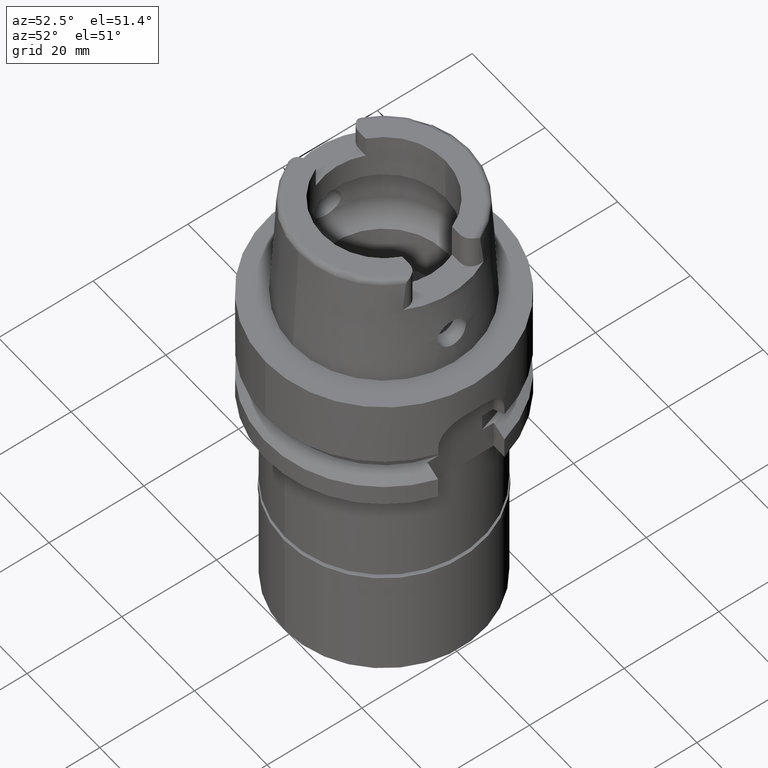
[diagram: clean part render]
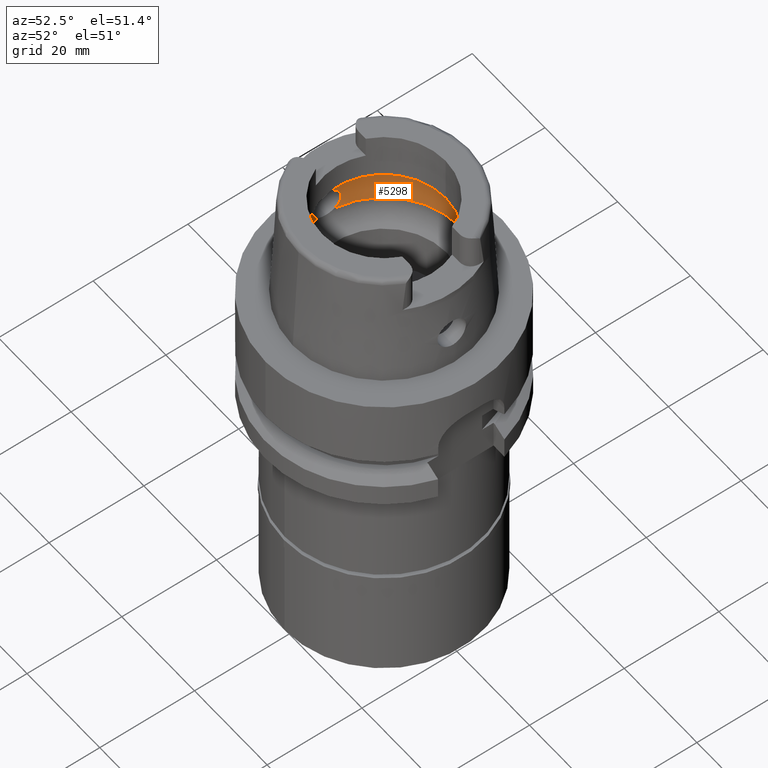
[diagram: same view with one face highlighted and labeled with its STEP entity id]
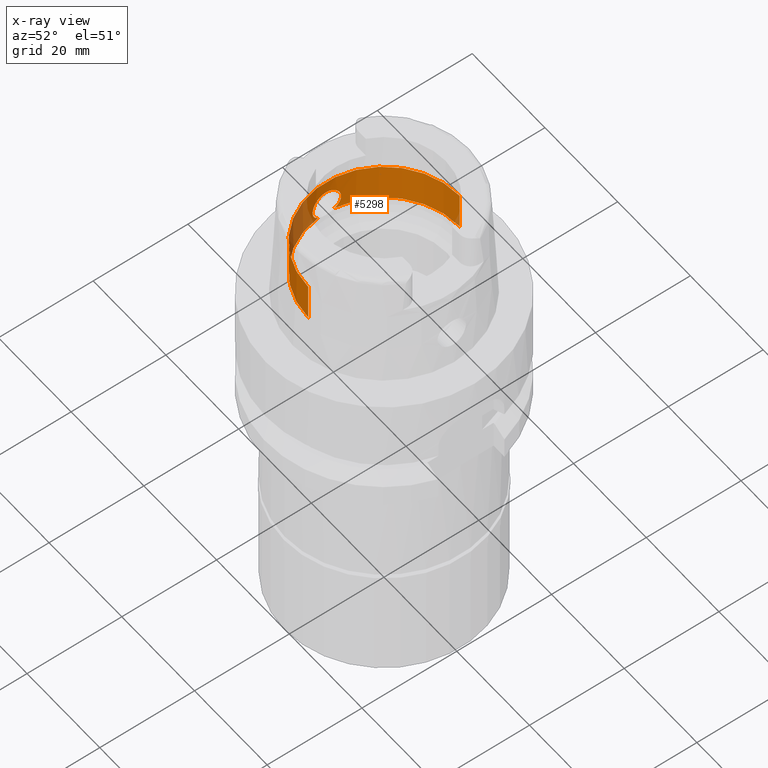
[diagram: x-ray of the same camera — body ghosted, the highlighted face saturated]
A machine part, auxiliary view. The second image highlights one B-rep face of the part: STEP entity #5298.
The next image is the same camera in x-ray: the body ghosted, the highlighted face saturated — about 12% of this face is hidden behind the body in this view.
In plain terms, the highlighted cylindrical surface (partial cylindrical patch) has radius 16 mm, axis along (0, 0, 1).
Its self-contained STEP definition (entity closure, byte-faithful):
#3 = EDGE_CURVE ( 'NONE', #4327, #130, #1689, .T. ) ;
#11 = LINE ( 'NONE', #2820, #3813 ) ;
#74 = CARTESIAN_POINT ( 'NONE',  ( -15.85360490942496625, 2.159781060076579884, 9.582798979518717175 ) ) ;
#102 = CARTESIAN_POINT ( 'NONE',  ( -15.83011907268372376, 2.325804281314371114, 5.604693772686527353 ) ) ;
#130 = VERTEX_POINT ( 'NONE', #3704 ) ;
#136 = CARTESIAN_POINT ( 'NONE',  ( -15.72771942967520609, 2.939531676687658024, 8.104588846059888496 ) ) ;
#139 = CARTESIAN_POINT ( 'NONE',  ( -15.82027127410935385, -2.391580718813938855, 9.311245973682712673 ) ) ;
#159 = CARTESIAN_POINT ( 'NONE',  ( -15.83998008072024000, 2.257711120083047973, 9.476085156541161680 ) ) ;
#164 = CARTESIAN_POINT ( 'NONE',  ( -15.76019352119648076, -2.760527905334588361, 8.676795684430540945 ) ) ;
#186 = CARTESIAN_POINT ( 'NONE',  ( -15.72575684360607084, 2.951481853126600718, 6.872757474522299681 ) ) ;
#189 = CARTESIAN_POINT ( 'NONE',  ( -15.82480137623916505, -2.361587141660386635, 9.350401961597023970 ) ) ;
#223 = CARTESIAN_POINT ( 'NONE',  ( -15.81398433061579745, -2.432676461633322518, 9.255589141645923945 ) ) ;
#243 = CARTESIAN_POINT ( 'NONE',  ( -15.96992059342635173, 0.9799261758645131382, 10.33553757479539215 ) ) ;
#247 = CARTESIAN_POINT ( 'NONE',  ( -15.85514333196193171, -2.148218134158464743, 5.405773310586390323 ) ) ;
#249 = CARTESIAN_POINT ( 'NONE',  ( 0.0000000000000000000, -16.00000000000000000, 5.060987926546999915 ) ) ;
#291 = VECTOR ( 'NONE', #716, 1000.000000000000000 ) ;
#319 = CARTESIAN_POINT ( 'NONE',  ( -15.95025208625579616, 1.260531072850129108, 10.22346728246241021 ) ) ;
#381 = ORIENTED_EDGE ( 'NONE', *, *, #1491, .T. ) ;
#461 = ORIENTED_EDGE ( 'NONE', *, *, #3496, .F. ) ;
#489 = CARTESIAN_POINT ( 'NONE',  ( -15.71828237872020395, 2.989665135100695981, 7.794132645668703674 ) ) ;
#507 = CARTESIAN_POINT ( 'NONE',  ( 0.0000000000000000000, 0.0000000000000000000, 5.060987926546999915 ) ) ;
#514 = CARTESIAN_POINT ( 'NONE',  ( -15.75453089395557527, 2.792349934053283356, 6.402682268012145350 ) ) ;
#533 = VERTEX_POINT ( 'NONE', #4142 ) ;
#540 = CARTESIAN_POINT ( 'NONE',  ( -15.76728727648495010, 2.720145057969051372, 6.232311309027123158 ) ) ;
#543 = AXIS2_PLACEMENT_3D ( 'NONE', #2225, #1421, #5190 ) ;
#544 = CARTESIAN_POINT ( 'NONE',  ( -15.76557056196502593, -2.729906874286962548, 8.746534421694992290 ) ) ;
#570 = CARTESIAN_POINT ( 'NONE',  ( -15.77782794236486730, 2.658185335532027516, 8.892943387562738167 ) ) ;
#573 = CARTESIAN_POINT ( 'NONE',  ( -15.97364696837025022, -0.9172688642126561875, 10.35634220639586012 ) ) ;
#594 = CARTESIAN_POINT ( 'NONE',  ( -15.84873746113816750, 2.195239179731879986, 9.545262083797341646 ) ) ;
#598 = CARTESIAN_POINT ( 'NONE',  ( -15.97428371962349125, -0.9061556334865509266, 10.35989226568158017 ) ) ;
#607 = B_SPLINE_CURVE_WITH_KNOTS ( 'NONE', 3,
 ( #1727, #5110, #1317, #4704, #4295, #3506, #1860, #3107, #2227, #3560, #4342, #102, #4758, #4783, #1020, #4844, #5248, #1809, #2640, #1451, #1780, #4319, #540, #964, #514, #4814, #5192, #3481, #2671, #937, #186, #4376, #3930, #489, #5218, #136, #993, #3449, #1424, #2196, #3894, #1398, #3140, #3079, #570, #5167, #2255, #1374, #2702, #1044, #3960, #3532, #5135, #2728, #2170, #3867, #4403, #159, #594, #74, #1831, #2616, #1751, #2278, #3053, #3984, #1347, #3026, #4733, #1505, #662, #5357, #319, #2425, #5302, #3198, #243, #4046, #4949, #4900, #4427, #4072, #1150 ),
 .UNSPECIFIED., .F., .F.,
 ( 4, 2, 2, 2, 2, 2, 2, 1, 1, 1, 2, 2, 2, 2, 1, 1, 2, 2, 2, 2, 2, 1, 1, 2, 2, 2, 2, 1, 1, 1, 1, 2, 2, 2, 2, 2, 2, 2, 1, 1, 2, 2, 2, 2, 1, 1, 2, 2, 4 ),
 ( 0.0000000000000000000, 0.03125000000000182493, 0.04687500000000278250, 0.05468750000000336536, 0.06250000000000395517, 0.09375000000000641154, 0.1093750000000077438, 0.1171875000000084932, 0.1210937500000088957, 0.1230468750000091593, 0.1240234375000095063, 0.1250000000000098532, 0.1875000000000229816, 0.2187500000000293654, 0.2343750000000323630, 0.2421875000000338896, 0.2460937500000347777, 0.2500000000000356937, 0.3750000000000660583, 0.4375000000000813793, 0.4687500000000893730, 0.4843750000000934253, 0.4921875000000954237, 0.4960937500000964229, 0.5000000000000974776, 0.5625000000001111333, 0.5937500000001175726, 0.6093750000001209033, 0.6171875000001224576, 0.6210937500001232348, 0.6230468750001234568, 0.6240234375001233458, 0.6250000000001233458, 0.6562500000001115774, 0.6718750000001058043, 0.6875000000001001421, 0.7187500000000887068, 0.7343750000000829337, 0.7421875000000802691, 0.7460937500000789369, 0.7480468750000786038, 0.7500000000000783817, 0.8125000000000579536, 0.8437500000000479616, 0.8593750000000430767, 0.8671875000000406342, 0.8710937500000394129, 0.8750000000000381917, 1.000000000000000000 ),
 .UNSPECIFIED. ) ;
#615 = CARTESIAN_POINT ( 'NONE',  ( -16.00000000000000000, 0.0000000000000000000, 10.50000000000000000 ) ) ;
#629 = CARTESIAN_POINT ( 'NONE',  ( -15.76148873422872398, -2.754199144385230724, 6.300333656930002135 ) ) ;
#662 = CARTESIAN_POINT ( 'NONE',  ( -15.91867481848264276, 1.617759480937377203, 10.03274143841459853 ) ) ;
#665 = CARTESIAN_POINT ( 'NONE',  ( -15.81432325581010012, -2.430473678186602537, 9.258635961597402542 ) ) ;
#691 = CARTESIAN_POINT ( 'NONE',  ( -15.84159049985690437, -2.246362709479226449, 5.511026658581932303 ) ) ;
#716 = DIRECTION ( 'NONE',  ( 0.0000000000000000000, 1.173701050271000189E-13, 1.000000000000000000 ) ) ;
#890 = EDGE_CURVE ( 'NONE', #4356, #2804, #1323, .T. ) ;
#901 = ORIENTED_EDGE ( 'NONE', *, *, #890, .T. ) ;
#904 = CYLINDRICAL_SURFACE ( 'NONE', #543, 16.00000000000000000 ) ;
#931 = DIRECTION ( 'NONE',  ( 0.0000000000000000000, -1.000000000000000000, 0.0000000000000000000 ) ) ;
#937 = CARTESIAN_POINT ( 'NONE',  ( -15.74457988823577104, 2.847529673097779490, 6.555713504414710791 ) ) ;
#941 = CARTESIAN_POINT ( 'NONE',  ( -16.00000000000000000, 0.0000000000000000000, 10.50000000000000000 ) ) ;
#964 = CARTESIAN_POINT ( 'NONE',  ( -15.76184947624554056, 2.751189991730225159, 6.301563073844587137 ) ) ;
#967 = CARTESIAN_POINT ( 'NONE',  ( -15.81599109997692487, -2.419687894743269396, 5.726553375603467444 ) ) ;
#993 = CARTESIAN_POINT ( 'NONE',  ( -15.73275428480752680, 2.912293464440677937, 8.221207539293411415 ) ) ;
#998 = CARTESIAN_POINT ( 'NONE',  ( -15.84796519250814306, -2.201782577342937586, 9.540466185467106897 ) ) ;
#1020 = CARTESIAN_POINT ( 'NONE',  ( -15.82024511260613586, 2.391772057597025825, 5.688984033197959533 ) ) ;
#1023 = CARTESIAN_POINT ( 'NONE',  ( -15.78336272712826194, -2.625835950417275022, 8.959432762581041487 ) ) ;
#1044 = CARTESIAN_POINT ( 'NONE',  ( -15.81067389467647644, 2.454126174664897686, 9.225539329732145077 ) ) ;
#1049 = CARTESIAN_POINT ( 'NONE',  ( -15.72582475693806714, -2.949793458937874036, 6.947887425922115057 ) ) ;
#1077 = CARTESIAN_POINT ( 'NONE',  ( -15.80222786906571386, -2.508515045004919397, 5.853563917445752551 ) ) ;
#1119 = DIRECTION ( 'NONE',  ( 0.0000000000000000000, 0.0000000000000000000, -1.000000000000000000 ) ) ;
#1150 = CARTESIAN_POINT ( 'NONE',  ( -16.00000000000000000, 0.0000000000000000000, 10.50000000000000000 ) ) ;
#1192 = EDGE_CURVE ( 'NONE', #4356, #4327, #607, .T. ) ;
#1286 = ORIENTED_EDGE ( 'NONE', *, *, #3, .F. ) ;
#1317 = CARTESIAN_POINT ( 'NONE',  ( -15.89306942455703187, 1.847487463485911752, 5.135018318240952340 ) ) ;
#1323 = CIRCLE ( 'NONE', #2382, 16.00000000000000355 ) ;
#1347 = CARTESIAN_POINT ( 'NONE',  ( -15.90044731838755432, 1.782067060959270366, 9.913364094987036523 ) ) ;
#1374 = CARTESIAN_POINT ( 'NONE',  ( -15.80041250349708726, 2.519743600278556261, 9.129194493154640710 ) ) ;
#1378 = CARTESIAN_POINT ( 'NONE',  ( -15.81434082123300477, -2.430468625656863502, 5.741341871012791920 ) ) ;
#1398 = CARTESIAN_POINT ( 'NONE',  ( -15.74238930466725250, 2.859578415058178003, 8.407128543927791853 ) ) ;
#1402 = CARTESIAN_POINT ( 'NONE',  ( -15.73389074005527810, -2.906206497187582727, 6.754652058726410502 ) ) ;
#1421 = DIRECTION ( 'NONE',  ( 0.0000000000000000000, 0.0000000000000000000, 1.000000000000000000 ) ) ;
#1424 = CARTESIAN_POINT ( 'NONE',  ( -15.73904573701204512, 2.877960334901608075, 8.347384436460984602 ) ) ;
#1429 = CARTESIAN_POINT ( 'NONE',  ( -15.77947150269510423, -2.648615407104597530, 6.088958012440818024 ) ) ;
#1451 = CARTESIAN_POINT ( 'NONE',  ( -15.81622527559334657, 2.418156069691427490, 5.724463650538273995 ) ) ;
#1455 = CARTESIAN_POINT ( 'NONE',  ( -15.74311965813222969, -2.855554221220561573, 8.419735243373782652 ) ) ;
#1483 = CARTESIAN_POINT ( 'NONE',  ( -15.80905809895572567, -2.464743941829786067, 5.789469440772651687 ) ) ;
#1491 = EDGE_CURVE ( 'NONE', #533, #130, #3712, .T. ) ;
#1505 = CARTESIAN_POINT ( 'NONE',  ( -15.90214416582684898, 1.766872895799292964, 9.924498163905520087 ) ) ;
#1512 = CARTESIAN_POINT ( 'NONE',  ( -15.84814680739081005, -2.199341585286003653, 5.459549881745624056 ) ) ;
#1542 = DIRECTION ( 'NONE',  ( 0.0000000000000000000, 0.0000000000000000000, -1.000000000000000000 ) ) ;
#1689 = B_SPLINE_CURVE_WITH_KNOTS ( 'NONE', 3,
 ( #941, #2619, #4627, #2507, #4215, #4240, #3812, #2970, #4681, #598, #573, #2759, #5253, #3511, #4346, #2731, #4876, #3964, #3565, #2282, #4025, #2315, #2677, #1784, #2231, #4379, #3990, #998, #3083, #4847, #189, #139, #3143, #4463, #4819, #665, #1835, #223, #2345, #1023, #544, #164, #4050, #1899, #3112, #2258, #3934, #1455, #1812, #5171, #5196, #4431, #1049, #1865, #1402, #3485, #3594, #4787, #3535, #5221, #2705, #629, #1429, #4406, #5280, #1077, #1483, #3170, #1378, #3057, #4761, #967, #2645, #4490, #3202, #691, #1512, #2369, #247, #4905, #1925, #3621, #5306 ),
 .UNSPECIFIED., .F., .F.,
 ( 4, 2, 2, 1, 1, 2, 2, 2, 2, 1, 1, 1, 1, 2, 2, 2, 2, 2, 2, 1, 1, 1, 2, 2, 2, 2, 1, 1, 2, 2, 2, 2, 2, 1, 1, 2, 2, 2, 2, 1, 1, 1, 1, 2, 2, 2, 2, 2, 2, 4 ),
 ( 0.0000000000000000000, 0.06249999999999694689, 0.09374999999999547584, 0.1093749999999948236, 0.1171874999999944350, 0.1210937499999942546, 0.1249999999999940603, 0.1874999999999873990, 0.2187499999999839850, 0.2343749999999824862, 0.2421874999999815425, 0.2460937499999812927, 0.2480468749999812927, 0.2490234374999812927, 0.2499999999999812650, 0.2812499999999727440, 0.3124999999999641953, 0.3437499999999557021, 0.3593749999999513722, 0.3671874999999495404, 0.3710937499999481526, 0.3730468749999475975, 0.3740234374999475420, 0.3749999999999474865, 0.4374999999999537037, 0.4687499999999572564, 0.4843749999999589773, 0.4921874999999598654, 0.4960937499999602540, 0.4999999999999606981, 0.6249999999999683586, 0.6874999999999721334, 0.7187499999999741318, 0.7343749999999751310, 0.7421874999999757971, 0.7460937499999762412, 0.7499999999999765743, 0.8124999999999842348, 0.8437499999999882316, 0.8593749999999902300, 0.8671874999999912292, 0.8710937499999920064, 0.8730468749999925615, 0.8740234374999926725, 0.8749999999999928946, 0.9062499999999948930, 0.9218749999999958922, 0.9296874999999963363, 0.9374999999999966693, 1.000000000000000000 ),
 .UNSPECIFIED. ) ;
#1727 = CARTESIAN_POINT ( 'NONE',  ( -15.90436354886000103, 1.746774199932999982, 5.060987926546999915 ) ) ;
#1751 = CARTESIAN_POINT ( 'NONE',  ( -15.88798939315100966, 1.889856840296469942, 9.830237597778742398 ) ) ;
#1780 = CARTESIAN_POINT ( 'NONE',  ( -15.79950498609704290, 2.527539967074900584, 5.873733589401106236 ) ) ;
#1784 = CARTESIAN_POINT ( 'NONE',  ( -15.89740693169491870, -1.809512288827177517, 9.893439193240602947 ) ) ;
#1809 = CARTESIAN_POINT ( 'NONE',  ( -15.81654202490848782, 2.416082477142535101, 5.721644575906330132 ) ) ;
#1812 = CARTESIAN_POINT ( 'NONE',  ( -15.72468805783871382, -2.957067988589922258, 8.100870221323829057 ) ) ;
#1828 = CARTESIAN_POINT ( 'NONE',  ( 0.0000000000000000000, 0.0000000000000000000, 13.26397459622000063 ) ) ;
#1831 = CARTESIAN_POINT ( 'NONE',  ( -15.86836307285438963, 2.049524297206179124, 9.693233553764956767 ) ) ;
#1835 = CARTESIAN_POINT ( 'NONE',  ( -15.81402455054536205, -2.432414947990301446, 9.255949961295838690 ) ) ;
#1849 = CARTESIAN_POINT ( 'NONE',  ( -15.90436354886000103, 1.746774199932999982, 5.060987926546999915 ) ) ;
#1860 = CARTESIAN_POINT ( 'NONE',  ( -15.86938564034606713, 2.040254759637300186, 5.300466631436536957 ) ) ;
#1865 = CARTESIAN_POINT ( 'NONE',  ( -15.72871448758870372, -2.934295923528865480, 6.870534778890634797 ) ) ;
#1899 = CARTESIAN_POINT ( 'NONE',  ( -15.74954859196763657, -2.820088422488223223, 8.524330679607768246 ) ) ;
#1925 = CARTESIAN_POINT ( 'NONE',  ( -15.87948992023695283, -1.965590897121723746, 5.224406124770307969 ) ) ;
#2170 = CARTESIAN_POINT ( 'NONE',  ( -15.81885521785985205, 2.400996806701329866, 9.299407265713458770 ) ) ;
#2196 = CARTESIAN_POINT ( 'NONE',  ( -15.74065172746145436, 2.869138374587266949, 8.376440333662198867 ) ) ;
#2225 = CARTESIAN_POINT ( 'NONE',  ( 0.0000000000000000000, 0.0000000000000000000, -72.12500000000000000 ) ) ;
#2227 = CARTESIAN_POINT ( 'NONE',  ( -15.86257951744680561, 2.092603073541880576, 5.350178532933812292 ) ) ;
#2231 = CARTESIAN_POINT ( 'NONE',  ( -15.89131216565527183, -1.862469523396654392, 9.853186174491659344 ) ) ;
#2253 = FACE_OUTER_BOUND ( 'NONE', #4245, .T. ) ;
#2255 = CARTESIAN_POINT ( 'NONE',  ( -15.79491275665563599, 2.554070113087011595, 9.074332931894792509 ) ) ;
#2258 = CARTESIAN_POINT ( 'NONE',  ( -15.74446238006988885, -2.848157594521058655, 8.442375170780245242 ) ) ;
#2278 = CARTESIAN_POINT ( 'NONE',  ( -15.89135546260068210, 1.861345103981576043, 9.852978288255187067 ) ) ;
#2282 = CARTESIAN_POINT ( 'NONE',  ( -15.90398403591104426, -1.750241386003782207, 9.936536391615407027 ) ) ;
#2315 = CARTESIAN_POINT ( 'NONE',  ( -15.90273361794349327, -1.761560293765786600, 9.928356057406688251 ) ) ;
#2335 = CARTESIAN_POINT ( 'NONE',  ( 0.0000000000000000000, 16.00000000000000000, 13.26397459622000063 ) ) ;
#2345 = CARTESIAN_POINT ( 'NONE',  ( -15.79743889438053550, -2.540131239189748147, 9.106395470370079792 ) ) ;
#2369 = CARTESIAN_POINT ( 'NONE',  ( -15.85042028664288694, -2.182864433945712168, 5.441911216299346599 ) ) ;
#2382 = AXIS2_PLACEMENT_3D ( 'NONE', #3205, #1542, #5309 ) ;
#2425 = CARTESIAN_POINT ( 'NONE',  ( -15.95561162261969734, 1.190881112662109276, 10.25448969129619492 ) ) ;
#2507 = CARTESIAN_POINT ( 'NONE',  ( -15.99105824410677279, -0.5385612221853310899, 10.45230376773137948 ) ) ;
#2616 = CARTESIAN_POINT ( 'NONE',  ( -15.87695919378590403, 1.981072299624838440, 9.754244241276252225 ) ) ;
#2619 = CARTESIAN_POINT ( 'NONE',  ( -16.00000000000000000, -0.1518326785610669694, 10.49999999999999645 ) ) ;
#2640 = CARTESIAN_POINT ( 'NONE',  ( -15.81625297565156174, 2.417974592585867999, 5.724218081979716821 ) ) ;
#2645 = CARTESIAN_POINT ( 'NONE',  ( -15.82064787416772766, -2.389209241465691136, 5.685013704658943290 ) ) ;
#2671 = CARTESIAN_POINT ( 'NONE',  ( -15.74495861436578714, 2.845438465444300125, 6.549447001228745791 ) ) ;
#2677 = CARTESIAN_POINT ( 'NONE',  ( -15.90238202284152713, -1.764730006006673069, 9.926052518837272132 ) ) ;
#2702 = CARTESIAN_POINT ( 'NONE',  ( -15.80719278007317463, 2.476537227744318947, 9.193409331878978463 ) ) ;
#2705 = CARTESIAN_POINT ( 'NONE',  ( -15.75173003220912271, -2.808022414424693913, 6.435709268801387495 ) ) ;
#2728 = CARTESIAN_POINT ( 'NONE',  ( -15.81407067397840116, 2.432112660103165513, 9.256368582780755361 ) ) ;
#2731 = CARTESIAN_POINT ( 'NONE',  ( -15.92127928688620919, -1.584942127558523373, 10.04749568486710309 ) ) ;
#2759 = CARTESIAN_POINT ( 'NONE',  ( -15.96561895552156862, -1.055404951496222044, 10.31154771028366746 ) ) ;
#2804 = VERTEX_POINT ( 'NONE', #4944 ) ;
#2820 = CARTESIAN_POINT ( 'NONE',  ( 0.0000000000000000000, 16.00000000000000000, 5.060987926546999915 ) ) ;
#2884 = VERTEX_POINT ( 'NONE', #2335 ) ;
#2970 = CARTESIAN_POINT ( 'NONE',  ( -15.97696449995476797, -0.8579942623736016571, 10.37481410805588844 ) ) ;
#2992 = CARTESIAN_POINT ( 'NONE',  ( 0.0000000000000000000, -16.00000000000000000, 13.26397459622000063 ) ) ;
#3026 = CARTESIAN_POINT ( 'NONE',  ( -15.90140378487903483, 1.773511672331063549, 9.919642229495382324 ) ) ;
#3053 = CARTESIAN_POINT ( 'NONE',  ( -15.89593857126716436, 1.821765480081990463, 9.883578956288369355 ) ) ;
#3057 = CARTESIAN_POINT ( 'NONE',  ( -15.81510692797688833, -2.425467527336024887, 5.734464578379843580 ) ) ;
#3063 = ORIENTED_EDGE ( 'NONE', *, *, #3709, .T. ) ;
#3079 = CARTESIAN_POINT ( 'NONE',  ( -15.75998787226821207, 2.762622038380245115, 8.680204096343032916 ) ) ;
#3082 = AXIS2_PLACEMENT_3D ( 'NONE', #507, #1119, #931 ) ;
#3083 = CARTESIAN_POINT ( 'NONE',  ( -15.83923523886854312, -2.263337755605439039, 9.470684944518042769 ) ) ;
#3107 = CARTESIAN_POINT ( 'NONE',  ( -15.86482208404283512, 2.075499105281033874, 5.333692083838397657 ) ) ;
#3112 = CARTESIAN_POINT ( 'NONE',  ( -15.74593374067045559, -2.840048919091187507, 8.466767750834577555 ) ) ;
#3140 = CARTESIAN_POINT ( 'NONE',  ( -15.75031258141399171, 2.815910374723053611, 8.543456262992162209 ) ) ;
#3143 = CARTESIAN_POINT ( 'NONE',  ( -15.81813230823818728, -2.405642217940228367, 9.292556476058827286 ) ) ;
#3170 = CARTESIAN_POINT ( 'NONE',  ( -15.81256467096345197, -2.442032895888335720, 5.757387536018711671 ) ) ;
#3198 = CARTESIAN_POINT ( 'NONE',  ( -15.96627653353531073, 1.037929564416238737, 10.31511839180532597 ) ) ;
#3202 = CARTESIAN_POINT ( 'NONE',  ( -15.83757180179738988, -2.274498364883763113, 5.543420657257191131 ) ) ;
#3205 = CARTESIAN_POINT ( 'NONE',  ( 0.0000000000000000000, 0.0000000000000000000, 5.060987926546999915 ) ) ;
#3350 = ORIENTED_EDGE ( 'NONE', *, *, #5170, .T. ) ;
#3449 = CARTESIAN_POINT ( 'NONE',  ( -15.73548542109143611, 2.897450733175339632, 8.279500444032874995 ) ) ;
#3481 = CARTESIAN_POINT ( 'NONE',  ( -15.74593392697727268, 2.840051494852330105, 6.533470864024223168 ) ) ;
#3485 = CARTESIAN_POINT ( 'NONE',  ( -15.73668928041122683, -2.890951493035301745, 6.696747756036656618 ) ) ;
#3496 = EDGE_CURVE ( 'NONE', #533, #5252, #4515, .T. ) ;
#3506 = CARTESIAN_POINT ( 'NONE',  ( -15.87159491744653472, 2.022953114917609874, 5.284558766498561155 ) ) ;
#3511 = CARTESIAN_POINT ( 'NONE',  ( -15.93819324384999980, -1.404943970469390679, 10.15186125805193562 ) ) ;
#3532 = CARTESIAN_POINT ( 'NONE',  ( -15.81319777037974639, 2.437782575296222110, 9.248491951543577727 ) ) ;
#3535 = CARTESIAN_POINT ( 'NONE',  ( -15.74306664682796963, -2.855886139538710733, 6.581296566148693294 ) ) ;
#3560 = CARTESIAN_POINT ( 'NONE',  ( -15.84988705314361468, 2.187898963473052572, 5.444612556202084619 ) ) ;
#3565 = CARTESIAN_POINT ( 'NONE',  ( -15.90572222096682253, -1.734390888727513458, 9.947877597007931172 ) ) ;
#3594 = CARTESIAN_POINT ( 'NONE',  ( -15.74032246887447073, -2.871006856584371381, 6.629351597817917607 ) ) ;
#3621 = CARTESIAN_POINT ( 'NONE',  ( -15.89423426735585210, -1.839001217931524046, 5.127039168084742471 ) ) ;
#3704 = CARTESIAN_POINT ( 'NONE',  ( -15.90436354886000103, -1.746774199932999982, 5.060987926546999915 ) ) ;
#3709 = EDGE_CURVE ( 'NONE', #2884, #5252, #5187, .T. ) ;
#3712 = CIRCLE ( 'NONE', #3082, 16.00000000000000000 ) ;
#3812 = CARTESIAN_POINT ( 'NONE',  ( -15.98050976645150278, -0.7904382641697054179, 10.39448245399553805 ) ) ;
#3813 = VECTOR ( 'NONE', #5468, 1000.000000000000000 ) ;
#3867 = CARTESIAN_POINT ( 'NONE',  ( -15.82486738313463803, 2.361662920595184012, 9.351712128479013231 ) ) ;
#3894 = CARTESIAN_POINT ( 'NONE',  ( -15.74174019682087255, 2.863152527528756597, 8.395801470809718836 ) ) ;
#3930 = CARTESIAN_POINT ( 'NONE',  ( -15.71612835785560591, 3.000549284680248174, 7.639973477397419721 ) ) ;
#3934 = CARTESIAN_POINT ( 'NONE',  ( -15.74349877553261834, -2.853466303041339636, 8.426176388782764093 ) ) ;
#3960 = CARTESIAN_POINT ( 'NONE',  ( -15.81243719605694054, 2.442716449896151332, 9.241606177114691789 ) ) ;
#3964 = CARTESIAN_POINT ( 'NONE',  ( -15.90915482602391684, -1.702679487503277356, 9.970169334832434060 ) ) ;
#3984 = CARTESIAN_POINT ( 'NONE',  ( -15.89811362672337935, 1.802771355151108201, 9.898001032444367908 ) ) ;
#3990 = CARTESIAN_POINT ( 'NONE',  ( -15.86811491725388379, -2.051504545026499482, 9.691501283061725758 ) ) ;
#4025 = CARTESIAN_POINT ( 'NONE',  ( -15.90323441034557206, -1.757032956487422748, 9.931633812878288836 ) ) ;
#4046 = CARTESIAN_POINT ( 'NONE',  ( -15.97140765234913040, 0.9553070034210436878, 10.34384648559363917 ) ) ;
#4050 = CARTESIAN_POINT ( 'NONE',  ( -15.75295848147245259, -2.801123976331516108, 8.574730230791448804 ) ) ;
#4072 = CARTESIAN_POINT ( 'NONE',  ( -16.00000000000000000, 0.3028376890709719715, 10.50000000000000000 ) ) ;
#4138 = ORIENTED_EDGE ( 'NONE', *, *, #1192, .F. ) ;
#4142 = CARTESIAN_POINT ( 'NONE',  ( 0.0000000000000000000, -16.00000000000000000, 5.060987926546999915 ) ) ;
#4215 = CARTESIAN_POINT ( 'NONE',  ( -15.98826394539014650, -0.6161659565944197503, 10.43712122082320981 ) ) ;
#4240 = CARTESIAN_POINT ( 'NONE',  ( -15.98323420770020675, -0.7323799808915385512, 10.40950252647394692 ) ) ;
#4245 = EDGE_LOOP ( 'NONE', ( #4138, #901, #3350, #3063, #461, #381, #1286 ) ) ;
#4295 = CARTESIAN_POINT ( 'NONE',  ( -15.87800524559449933, 1.972126746377834472, 5.238851452638689565 ) ) ;
#4314 = DIRECTION ( 'NONE',  ( 0.0000000000000000000, 1.000000000000000000, 0.0000000000000000000 ) ) ;
#4319 = CARTESIAN_POINT ( 'NONE',  ( -15.78527691334154248, 2.614565960877238915, 6.020493375926281310 ) ) ;
#4327 = VERTEX_POINT ( 'NONE', #615 ) ;
#4342 = CARTESIAN_POINT ( 'NONE',  ( -15.84113731873768671, 2.249966348663795301, 5.514085492531346944 ) ) ;
#4346 = CARTESIAN_POINT ( 'NONE',  ( -15.93174777117727814, -1.476672852638774014, 10.11276492145480255 ) ) ;
#4356 = VERTEX_POINT ( 'NONE', #1849 ) ;
#4376 = CARTESIAN_POINT ( 'NONE',  ( -15.71650497422955794, 2.998837413736383350, 7.186107498250805747 ) ) ;
#4379 = CARTESIAN_POINT ( 'NONE',  ( -15.87658176311435021, -1.984086668909337936, 9.751594543352835487 ) ) ;
#4403 = CARTESIAN_POINT ( 'NONE',  ( -15.83594454240417093, 2.285813675346688445, 9.443354890624885201 ) ) ;
#4406 = CARTESIAN_POINT ( 'NONE',  ( -15.78602321142338916, -2.609277611611664494, 6.017139910171792394 ) ) ;
#4407 = AXIS2_PLACEMENT_3D ( 'NONE', #1828, #5189, #4314 ) ;
#4427 = CARTESIAN_POINT ( 'NONE',  ( -15.99111077077784770, 0.6158877185095599227, 10.45374884310524166 ) ) ;
#4431 = CARTESIAN_POINT ( 'NONE',  ( -15.71883887796742307, -2.986916562720689949, 7.179424850097331223 ) ) ;
#4463 = CARTESIAN_POINT ( 'NONE',  ( -15.81585749714420963, -2.420490762461071199, 9.272373584569699290 ) ) ;
#4490 = CARTESIAN_POINT ( 'NONE',  ( -15.82657222850815337, -2.350233195293086386, 5.633831177795107337 ) ) ;
#4515 = LINE ( 'NONE', #249, #291 ) ;
#4627 = CARTESIAN_POINT ( 'NONE',  ( -15.99776456102669542, -0.3061716971502159157, 10.48845140497128803 ) ) ;
#4681 = CARTESIAN_POINT ( 'NONE',  ( -15.97536651037618682, -0.8868982530100787409, 10.36592276452322814 ) ) ;
#4704 = CARTESIAN_POINT ( 'NONE',  ( -15.88198879348857240, 1.939683974958059665, 5.211067246949080634 ) ) ;
#4733 = CARTESIAN_POINT ( 'NONE',  ( -15.90203172096693329, 1.767879366308540368, 9.923760449556102259 ) ) ;
#4758 = CARTESIAN_POINT ( 'NONE',  ( -15.82679738325822782, 2.348201101556273152, 5.632651227415811590 ) ) ;
#4761 = CARTESIAN_POINT ( 'NONE',  ( -15.81561875458068656, -2.422123438003369600, 5.729879636230426954 ) ) ;
#4783 = CARTESIAN_POINT ( 'NONE',  ( -15.82234143800870996, 2.377898655911205417, 5.670831351359003847 ) ) ;
#4787 = CARTESIAN_POINT ( 'NONE',  ( -15.74195845494044654, -2.861996314385301332, 6.600511957931372464 ) ) ;
#4814 = CARTESIAN_POINT ( 'NONE',  ( -15.75108113232788121, 2.811578256771495088, 6.452554914343666681 ) ) ;
#4819 = CARTESIAN_POINT ( 'NONE',  ( -15.81477525386949878, -2.427535115617380779, 9.262694814958555511 ) ) ;
#4844 = CARTESIAN_POINT ( 'NONE',  ( -15.81802978227529799, 2.406332881854406303, 5.708453084680638057 ) ) ;
#4847 = CARTESIAN_POINT ( 'NONE',  ( -15.82815767150902531, -2.339099573775763830, 9.378879299100084665 ) ) ;
#4876 = CARTESIAN_POINT ( 'NONE',  ( -15.91584497592016945, -1.639243354535527608, 10.01320561385685437 ) ) ;
#4900 = CARTESIAN_POINT ( 'NONE',  ( -15.97277673550715349, 0.9322598782890737512, 10.35148961648405752 ) ) ;
#4905 = CARTESIAN_POINT ( 'NONE',  ( -15.85771058091157570, -2.129165091551766587, 5.386398734215176454 ) ) ;
#4944 = CARTESIAN_POINT ( 'NONE',  ( 0.0000000000000000000, 16.00000000000000000, 5.060987926546999915 ) ) ;
#4949 = CARTESIAN_POINT ( 'NONE',  ( -15.97238242917974738, 0.9389487256110095048, 10.34928931403640817 ) ) ;
#5110 = CARTESIAN_POINT ( 'NONE',  ( -15.89929649511768339, 1.792909679188224414, 5.094029281996714786 ) ) ;
#5135 = CARTESIAN_POINT ( 'NONE',  ( -15.81370590297965784, 2.434483523445664321, 9.253082417658154313 ) ) ;
#5167 = CARTESIAN_POINT ( 'NONE',  ( -15.78432915469963405, 2.619288235225949890, 8.965101509404005853 ) ) ;
#5170 = EDGE_CURVE ( 'NONE', #2804, #2884, #11, .T. ) ;
#5171 = CARTESIAN_POINT ( 'NONE',  ( -15.71592078853742791, -3.001560165599469698, 7.786119713721967095 ) ) ;
#5187 = CIRCLE ( 'NONE', #4407, 16.00000000000000000 ) ;
#5189 = DIRECTION ( 'NONE',  ( 0.0000000000000000000, 0.0000000000000000000, 1.000000000000000000 ) ) ;
#5190 = DIRECTION ( 'NONE',  ( 0.0000000000000000000, 1.000000000000000000, 0.0000000000000000000 ) ) ;
#5192 = CARTESIAN_POINT ( 'NONE',  ( -15.74742308708417049, 2.831824294871541525, 6.509405087062154927 ) ) ;
#5196 = CARTESIAN_POINT ( 'NONE',  ( -15.71642604262866705, -2.999156589911348370, 7.333066693662422253 ) ) ;
#5218 = CARTESIAN_POINT ( 'NONE',  ( -15.72493274950097231, 2.954426172004599671, 8.026800628791793457 ) ) ;
#5221 = CARTESIAN_POINT ( 'NONE',  ( -15.74373058474781750, -2.852221018975690026, 6.569997624914352130 ) ) ;
#5248 = CARTESIAN_POINT ( 'NONE',  ( -15.81697971276956771, 2.413216442216925106, 5.717752881102708074 ) ) ;
#5252 = VERTEX_POINT ( 'NONE', #2992 ) ;
#5253 = CARTESIAN_POINT ( 'NONE',  ( -15.95592911130414748, -1.192762781929008975, 10.25721956225929965 ) ) ;
#5280 = CARTESIAN_POINT ( 'NONE',  ( -15.79668695337506712, -2.543269112711891822, 5.908276674342721968 ) ) ;
#5298 = ADVANCED_FACE ( 'NONE', ( #2253 ), #904, .F. ) ;
#5302 = CARTESIAN_POINT ( 'NONE',  ( -15.96285432950659100, 1.088556503064300074, 10.29578210177841235 ) ) ;
#5306 = CARTESIAN_POINT ( 'NONE',  ( -15.90436354886000103, -1.746774199932999982, 5.060987926546999915 ) ) ;
#5309 = DIRECTION ( 'NONE',  ( -0.9940227218040297297, 0.1091733874958031730, 0.0000000000000000000 ) ) ;
#5357 = CARTESIAN_POINT ( 'NONE',  ( -15.93258028184621544, 1.472438634566643145, 10.11854443622617161 ) ) ;
#5468 = DIRECTION ( 'NONE',  ( 0.0000000000000000000, -1.173701050271000189E-13, 1.000000000000000000 ) ) ;